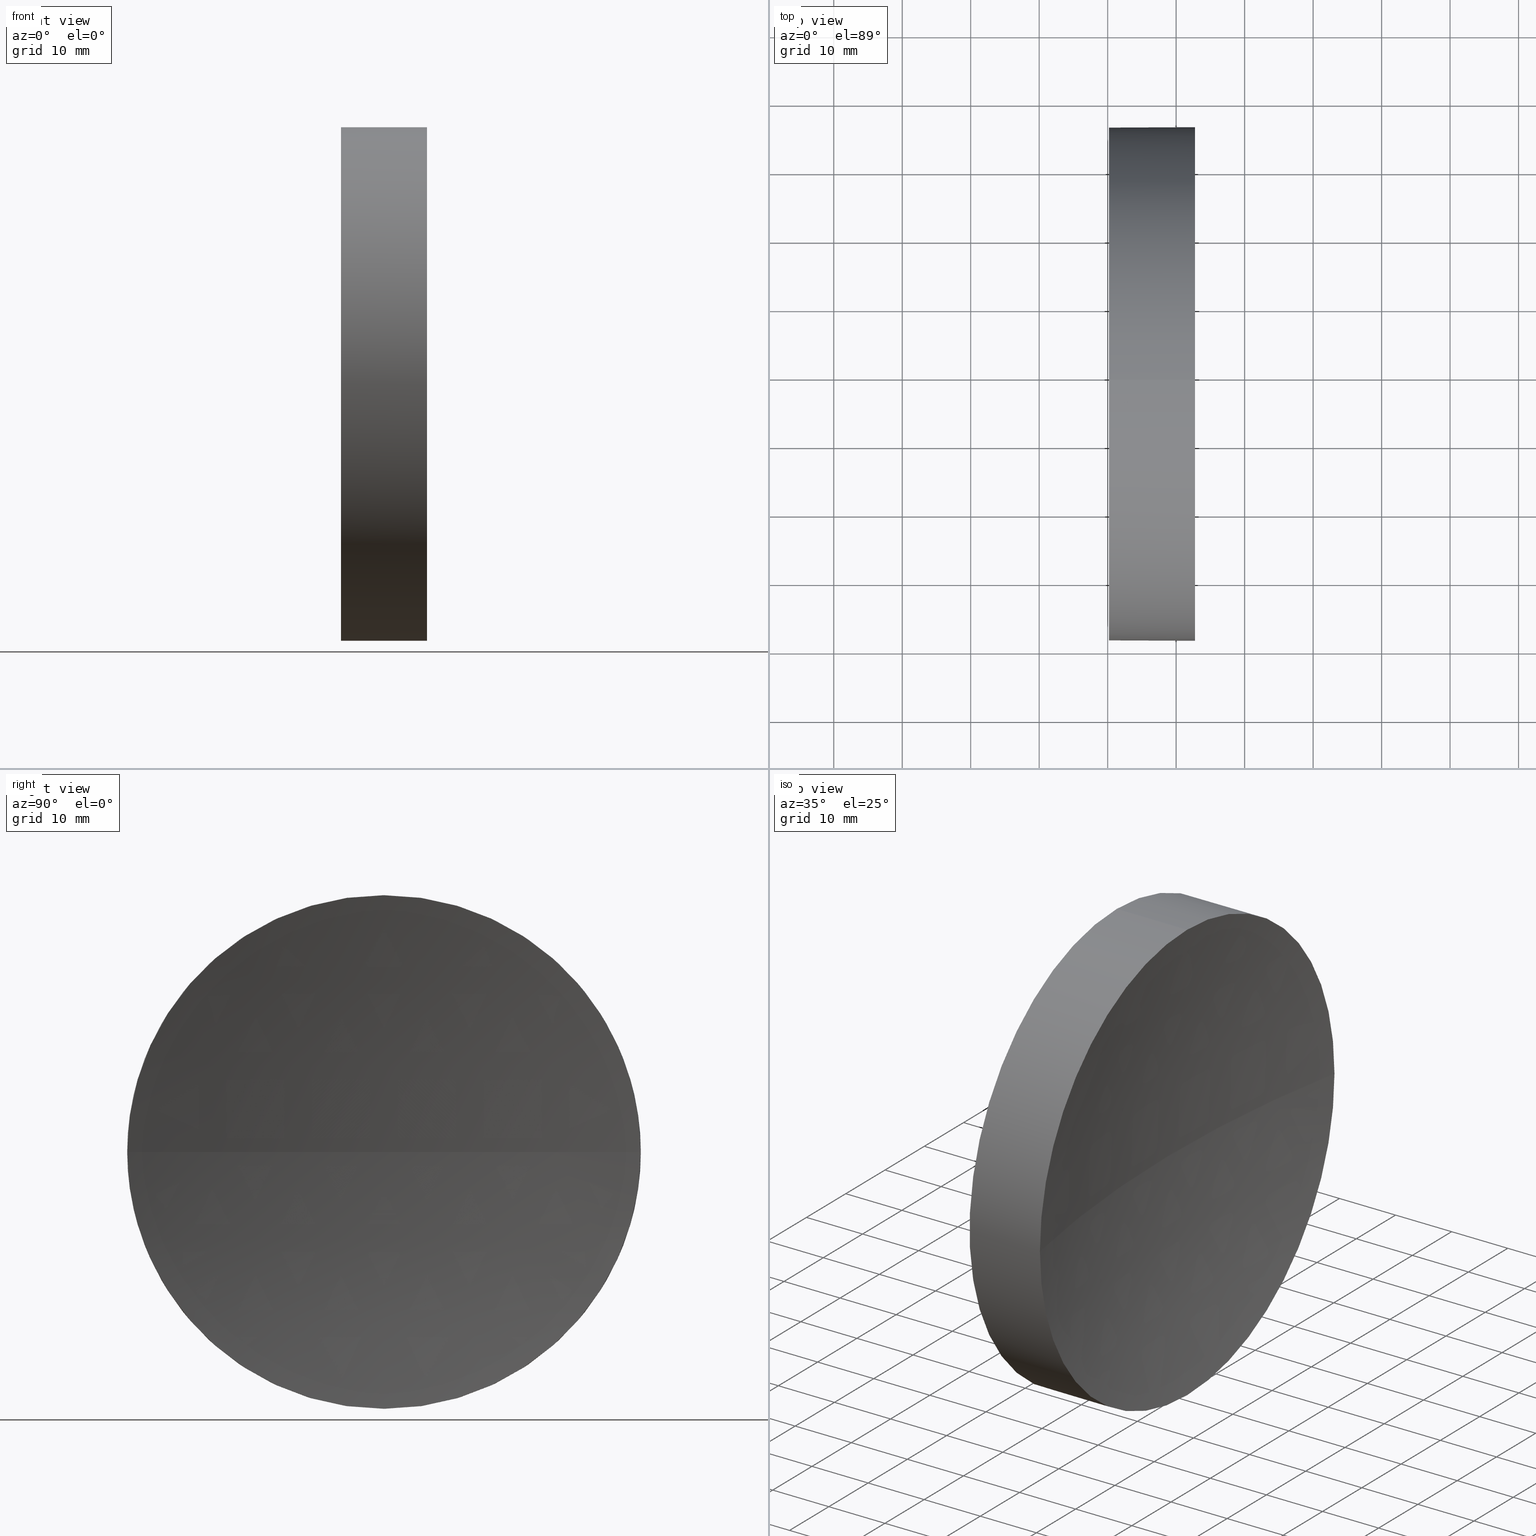
[diagram: canonical four-view strip — front | top / right | iso, engineering-drawing reading convention]
A machine part, canonical four-view strip (front | top / right | iso — engineering-drawing reading convention). The complete STEP part file that produces these views, byte-faithful:
ISO-10303-21;
HEADER;
FILE_DESCRIPTION (( 'STEP AP214' ),
    '1' );
FILE_NAME ('270059.STEP',
    '2019-07-23T07:25:18',
    ( '' ),
    ( '' ),
    'SwSTEP 2.0',
    'SolidWorks 2016',
    '' );
FILE_SCHEMA (( 'AUTOMOTIVE_DESIGN' ));
ENDSEC;

DATA;
#1 = COLOUR_RGB ( '',1.000000000000000000, 1.000000000000000000, 1.000000000000000000 ) ;
#2 =( LENGTH_UNIT ( ) NAMED_UNIT ( * ) SI_UNIT ( .MILLI., .METRE. ) );
#3 = APPLICATION_CONTEXT ( 'automotive_design' ) ;
#4 = DIRECTION ( 'NONE',  ( -1.000000000000000000, -0.0000000000000000000, -0.0000000000000000000 ) ) ;
#5 = CARTESIAN_POINT ( 'NONE',  ( 230.1996119052661200, 138.7560422467448700, 0.0000000000000000000 ) ) ;
#6 = DIRECTION ( 'NONE',  ( 0.0000000000000000000, 0.0000000000000000000, 1.000000000000000000 ) ) ;
#7 = ORIENTED_EDGE ( 'NONE', *, *, #78, .F. ) ;
#8 = VERTEX_POINT ( 'NONE', #102 ) ;
#9 = DIRECTION ( 'NONE',  ( 0.0000000000000000000, 1.224646799147353200E-016, -1.000000000000000000 ) ) ;
#10 = MECHANICAL_DESIGN_GEOMETRIC_PRESENTATION_REPRESENTATION (  '', ( #133 ), #31 ) ;
#11 = PRODUCT_DEFINITION_CONTEXT ( 'detailed design', #3, 'design' ) ;
#12 = CIRCLE ( 'NONE', #125, 37.50000000000000700 ) ;
#13 = VERTEX_POINT ( 'NONE', #62 ) ;
#14 = PRODUCT_CONTEXT ( 'NONE', #177, 'mechanical' ) ;
#15 = SURFACE_STYLE_FILL_AREA ( #60 ) ;
#16 = PRODUCT_RELATED_PRODUCT_CATEGORY ( 'part', '', ( #105 ) ) ;
#17 = FILL_AREA_STYLE_COLOUR ( '', #79 ) ;
#18 = DIRECTION ( 'NONE',  ( -1.000000000000000000, -0.0000000000000000000, -0.0000000000000000000 ) ) ;
#19 = ORIENTED_EDGE ( 'NONE', *, *, #69, .F. ) ;
#20 = CARTESIAN_POINT ( 'NONE',  ( 217.9702860043302100, 138.7560422467448700, 37.50000000000000700 ) ) ;
#21 = ORIENTED_EDGE ( 'NONE', *, *, #69, .T. ) ;
#22 = PRODUCT_DEFINITION ( 'δ֪', '', #149, #11 ) ;
#23 = VERTEX_POINT ( 'NONE', #99 ) ;
#24 =( GEOMETRIC_REPRESENTATION_CONTEXT ( 3 ) GLOBAL_UNCERTAINTY_ASSIGNED_CONTEXT ( ( #185 ) ) GLOBAL_UNIT_ASSIGNED_CONTEXT ( ( #37, #134, #160 ) ) REPRESENTATION_CONTEXT ( 'NONE', 'WORKASPACE' ) );
#25 = AXIS2_PLACEMENT_3D ( 'NONE', #115, #84, #42 ) ;
#26 = PRESENTATION_LAYER_ASSIGNMENT (  '', '', ( #32 ) ) ;
#27 = ORIENTED_EDGE ( 'NONE', *, *, #116, .T. ) ;
#28 = CARTESIAN_POINT ( 'NONE',  ( 242.7466913625733000, 138.7560422467448700, 0.0000000000000000000 ) ) ;
#29 =( NAMED_UNIT ( * ) PLANE_ANGLE_UNIT ( ) SI_UNIT ( $, .RADIAN. ) );
#30 = APPLICATION_PROTOCOL_DEFINITION ( 'draft international standard', 'automotive_design', 1998, #3 ) ;
#31 =( GEOMETRIC_REPRESENTATION_CONTEXT ( 3 ) GLOBAL_UNCERTAINTY_ASSIGNED_CONTEXT ( ( #64 ) ) GLOBAL_UNIT_ASSIGNED_CONTEXT ( ( #158, #29, #128 ) ) REPRESENTATION_CONTEXT ( 'NONE', 'WORKASPACE' ) );
#32 = STYLED_ITEM ( 'NONE', ( #183 ), #108 ) ;
#33 = ORIENTED_EDGE ( 'NONE', *, *, #116, .F. ) ;
#34 = DIRECTION ( 'NONE',  ( 0.0000000000000000000, 0.0000000000000000000, 1.000000000000000000 ) ) ;
#35 = CARTESIAN_POINT ( 'NONE',  ( 230.1996119052661200, 138.7560422467448700, 37.50000000000000700 ) ) ;
#36 = AXIS2_PLACEMENT_3D ( 'NONE', #144, #4, #34 ) ;
#37 =( LENGTH_UNIT ( ) NAMED_UNIT ( * ) SI_UNIT ( .MILLI., .METRE. ) );
#38 = ORIENTED_EDGE ( 'NONE', *, *, #142, .T. ) ;
#39 = ORIENTED_EDGE ( 'NONE', *, *, #135, .F. ) ;
#40 = SPHERICAL_SURFACE ( 'NONE', #182, 200.0000000000000000 ) ;
#41 = DIRECTION ( 'NONE',  ( -1.000000000000000000, -0.0000000000000000000, -0.0000000000000000000 ) ) ;
#42 = DIRECTION ( 'NONE',  ( 1.000000000000000000, 0.0000000000000000000, 0.0000000000000000000 ) ) ;
#43 = SURFACE_SIDE_STYLE ('',( #121 ) ) ;
#44 = CIRCLE ( 'NONE', #36, 37.50000000000000700 ) ;
#45 = EDGE_LOOP ( 'NONE', ( #7, #77, #33, #21 ) ) ;
#46 = CARTESIAN_POINT ( 'NONE',  ( 239.1996119313446300, 138.7560422467447600, 0.0000000000000000000 ) ) ;
#47 = EDGE_LOOP ( 'NONE', ( #109, #171, #38, #126, #140 ) ) ;
#48 = CYLINDRICAL_SURFACE ( 'NONE', #179, 37.50000000000000700 ) ;
#49 = SPHERICAL_SURFACE ( 'NONE', #131, 200.0000000000000000 ) ;
#50 = AXIS2_PLACEMENT_3D ( 'NONE', #147, #72, #178 ) ;
#51 = ORIENTED_EDGE ( 'NONE', *, *, #142, .F. ) ;
#52 = APPLICATION_PROTOCOL_DEFINITION ( 'draft international standard', 'automotive_design', 1998, #177 ) ;
#53 = DIRECTION ( 'NONE',  ( 1.000000000000000000, 0.0000000000000000000, 0.0000000000000000000 ) ) ;
#54 = FACE_OUTER_BOUND ( 'NONE', #122, .T. ) ;
#55 = ORIENTED_EDGE ( 'NONE', *, *, #57, .F. ) ;
#56 = DIRECTION ( 'NONE',  ( -1.000000000000000000, -0.0000000000000000000, -0.0000000000000000000 ) ) ;
#57 = EDGE_CURVE ( 'NONE', #13, #162, #165, .T. ) ;
#58 = ADVANCED_FACE ( 'NONE', ( #86 ), #49, .F. ) ;
#59 = AXIS2_PLACEMENT_3D ( 'NONE', #157, #56, #175 ) ;
#60 = FILL_AREA_STYLE ('',( #17 ) ) ;
#61 = PRESENTATION_LAYER_ASSIGNMENT (  '', '', ( #133 ) ) ;
#62 = CARTESIAN_POINT ( 'NONE',  ( 242.7466913625733000, 138.7560422467448700, 37.50000000000000700 ) ) ;
#63 = VERTEX_POINT ( 'NONE', #101 ) ;
#64 = UNCERTAINTY_MEASURE_WITH_UNIT (LENGTH_MEASURE( 1.000000000000000100E-005 ), #158, 'distance_accuracy_value', 'NONE');
#65 = AXIS2_PLACEMENT_3D ( 'NONE', #120, #66, #166 ) ;
#66 = DIRECTION ( 'NONE',  ( 0.0000000000000000000, 0.0000000000000000000, 1.000000000000000000 ) ) ;
#67 = CIRCLE ( 'NONE', #104, 37.50000000000000700 ) ;
#68 = VECTOR ( 'NONE', #112, 1000.000000000000000 ) ;
#69 = EDGE_CURVE ( 'NONE', #89, #74, #130, .T. ) ;
#70 = DIRECTION ( 'NONE',  ( -1.000000000000000000, -0.0000000000000000000, -0.0000000000000000000 ) ) ;
#71 = FILL_AREA_STYLE_COLOUR ( '', #1 ) ;
#72 = DIRECTION ( 'NONE',  ( -1.000000000000000000, -0.0000000000000000000, -0.0000000000000000000 ) ) ;
#73 = SURFACE_SIDE_STYLE ('',( #15 ) ) ;
#74 = VERTEX_POINT ( 'NONE', #46 ) ;
#75 = DIRECTION ( 'NONE',  ( 0.0000000000000000000, 0.0000000000000000000, -1.000000000000000000 ) ) ;
#76 = DIRECTION ( 'NONE',  ( 0.0000000000000000000, 1.000000000000000000, 0.0000000000000000000 ) ) ;
#77 = ORIENTED_EDGE ( 'NONE', *, *, #161, .F. ) ;
#78 = EDGE_CURVE ( 'NONE', #63, #74, #124, .T. ) ;
#79 = COLOUR_RGB ( '',1.000000000000000000, 1.000000000000000000, 1.000000000000000000 ) ;
#80 = AXIS2_PLACEMENT_3D ( 'NONE', #5, #53, #156 ) ;
#81 = DIRECTION ( 'NONE',  ( 0.0000000000000000000, 0.0000000000000000000, 1.000000000000000000 ) ) ;
#82 = ORIENTED_EDGE ( 'NONE', *, *, #95, .T. ) ;
#83 = SURFACE_STYLE_USAGE ( .BOTH. , #43 ) ;
#84 = DIRECTION ( 'NONE',  ( 0.0000000000000000000, 0.0000000000000000000, 1.000000000000000000 ) ) ;
#85 =( GEOMETRIC_REPRESENTATION_CONTEXT ( 3 ) GLOBAL_UNCERTAINTY_ASSIGNED_CONTEXT ( ( #163 ) ) GLOBAL_UNIT_ASSIGNED_CONTEXT ( ( #2, #113, #94 ) ) REPRESENTATION_CONTEXT ( 'NONE', 'WORKASPACE' ) );
#86 = FACE_OUTER_BOUND ( 'NONE', #150, .T. ) ;
#87 = CARTESIAN_POINT ( 'NONE',  ( 230.1996119052661200, 138.7560422467448700, 0.0000000000000000000 ) ) ;
#88 = ADVANCED_FACE ( 'NONE', ( #92 ), #40, .F. ) ;
#89 = VERTEX_POINT ( 'NONE', #181 ) ;
#90 = AXIS2_PLACEMENT_3D ( 'NONE', #91, #9, #106 ) ;
#91 = CARTESIAN_POINT ( 'NONE',  ( 439.1996119313446300, 138.7560422467447600, 0.0000000000000000000 ) ) ;
#92 = FACE_OUTER_BOUND ( 'NONE', #45, .T. ) ;
#93 = DIRECTION ( 'NONE',  ( 0.0000000000000000000, 0.0000000000000000000, 1.000000000000000000 ) ) ;
#94 =( NAMED_UNIT ( * ) SI_UNIT ( $, .STERADIAN. ) SOLID_ANGLE_UNIT ( ) );
#95 = EDGE_CURVE ( 'NONE', #162, #8, #123, .T. ) ;
#96 = CARTESIAN_POINT ( 'NONE',  ( 217.9702860043302100, 138.7560422467448700, -37.50000000000000700 ) ) ;
#97 = FACE_OUTER_BOUND ( 'NONE', #154, .T. ) ;
#98 = PLANE ( 'NONE',  #80 ) ;
#99 = CARTESIAN_POINT ( 'NONE',  ( 242.7466913625733000, 138.7560422467448700, -37.50000000000000700 ) ) ;
#100 = AXIS2_PLACEMENT_3D ( 'NONE', #110, #70, #145 ) ;
#101 = CARTESIAN_POINT ( 'NONE',  ( 242.7466913625733300, 101.2560422467446800, -4.592425496802582300E-015 ) ) ;
#102 = CARTESIAN_POINT ( 'NONE',  ( 230.1996119052661200, 138.7560422467448700, -37.50000000000000700 ) ) ;
#103 = ORIENTED_EDGE ( 'NONE', *, *, #78, .T. ) ;
#104 = AXIS2_PLACEMENT_3D ( 'NONE', #176, #174, #81 ) ;
#105 = PRODUCT ( '270059', '270059', '', ( #14 ) ) ;
#106 = DIRECTION ( 'NONE',  ( 0.0000000000000000000, 1.000000000000000000, 1.224646799147353200E-016 ) ) ;
#107 = ADVANCED_FACE ( 'NONE', ( #129 ), #164, .T. ) ;
#108 = MANIFOLD_SOLID_BREP ( '��ת1', #119 ) ;
#109 = ORIENTED_EDGE ( 'NONE', *, *, #173, .F. ) ;
#110 = CARTESIAN_POINT ( 'NONE',  ( 242.7466913625733000, 138.7560422467448700, 0.0000000000000000000 ) ) ;
#111 = FILL_AREA_STYLE ('',( #71 ) ) ;
#112 = DIRECTION ( 'NONE',  ( -1.000000000000000000, -0.0000000000000000000, -0.0000000000000000000 ) ) ;
#113 =( NAMED_UNIT ( * ) PLANE_ANGLE_UNIT ( ) SI_UNIT ( $, .RADIAN. ) );
#114 = ADVANCED_FACE ( 'NONE', ( #97 ), #98, .F. ) ;
#115 = CARTESIAN_POINT ( 'NONE',  ( 0.0000000000000000000, 0.0000000000000000000, 0.0000000000000000000 ) ) ;
#116 = EDGE_CURVE ( 'NONE', #89, #23, #155, .T. ) ;
#117 = SURFACE_STYLE_USAGE ( .BOTH. , #73 ) ;
#118 = SHAPE_DEFINITION_REPRESENTATION ( #141, #127 ) ;
#119 = CLOSED_SHELL ( 'NONE', ( #139, #58, #88, #107, #114 ) ) ;
#120 = CARTESIAN_POINT ( 'NONE',  ( 439.1996119313446300, 138.7560422467447600, 0.0000000000000000000 ) ) ;
#121 = SURFACE_STYLE_FILL_AREA ( #111 ) ;
#122 = EDGE_LOOP ( 'NONE', ( #27, #184, #186, #55, #143 ) ) ;
#123 = CIRCLE ( 'NONE', #170, 37.50000000000000700 ) ;
#124 = CIRCLE ( 'NONE', #90, 200.0000000000000000 ) ;
#125 = AXIS2_PLACEMENT_3D ( 'NONE', #28, #41, #6 ) ;
#126 = ORIENTED_EDGE ( 'NONE', *, *, #57, .T. ) ;
#127 = ADVANCED_BREP_SHAPE_REPRESENTATION ( '270059', ( #108, #25 ), #85 ) ;
#128 =( NAMED_UNIT ( * ) SI_UNIT ( $, .STERADIAN. ) SOLID_ANGLE_UNIT ( ) );
#129 = FACE_OUTER_BOUND ( 'NONE', #47, .T. ) ;
#130 = CIRCLE ( 'NONE', #65, 200.0000000000000000 ) ;
#131 = AXIS2_PLACEMENT_3D ( 'NONE', #148, #180, #151 ) ;
#132 = DIRECTION ( 'NONE',  ( -1.000000000000000000, -0.0000000000000000000, -0.0000000000000000000 ) ) ;
#133 = STYLED_ITEM ( 'NONE', ( #167 ), #127 ) ;
#134 =( NAMED_UNIT ( * ) PLANE_ANGLE_UNIT ( ) SI_UNIT ( $, .RADIAN. ) );
#135 = EDGE_CURVE ( 'NONE', #13, #89, #67, .T. ) ;
#136 = DIRECTION ( 'NONE',  ( -1.000000000000000000, -0.0000000000000000000, -0.0000000000000000000 ) ) ;
#137 = ORIENTED_EDGE ( 'NONE', *, *, #153, .T. ) ;
#138 = CARTESIAN_POINT ( 'NONE',  ( 439.1996119313446300, 138.7560422467447600, 0.0000000000000000000 ) ) ;
#139 = ADVANCED_FACE ( 'NONE', ( #54 ), #48, .T. ) ;
#140 = ORIENTED_EDGE ( 'NONE', *, *, #153, .F. ) ;
#141 = PRODUCT_DEFINITION_SHAPE ( 'NONE', 'NONE',  #22 ) ;
#142 = EDGE_CURVE ( 'NONE', #63, #13, #12, .T. ) ;
#143 = ORIENTED_EDGE ( 'NONE', *, *, #135, .T. ) ;
#144 = CARTESIAN_POINT ( 'NONE',  ( 242.7466913625733000, 138.7560422467448700, 0.0000000000000000000 ) ) ;
#145 = DIRECTION ( 'NONE',  ( 0.0000000000000000000, 0.0000000000000000000, 1.000000000000000000 ) ) ;
#146 = MECHANICAL_DESIGN_GEOMETRIC_PRESENTATION_REPRESENTATION (  '', ( #32 ), #24 ) ;
#147 = CARTESIAN_POINT ( 'NONE',  ( 217.9702860043302100, 138.7560422467448700, 0.0000000000000000000 ) ) ;
#148 = CARTESIAN_POINT ( 'NONE',  ( 439.1996119313446300, 138.7560422467447600, 0.0000000000000000000 ) ) ;
#149 = PRODUCT_DEFINITION_FORMATION_WITH_SPECIFIED_SOURCE ( '�κ�', '', #105, .NOT_KNOWN. ) ;
#150 = EDGE_LOOP ( 'NONE', ( #51, #103, #19, #39 ) ) ;
#151 = DIRECTION ( 'NONE',  ( 0.0000000000000000000, 1.000000000000000000, 0.0000000000000000000 ) ) ;
#152 = LINE ( 'NONE', #96, #68 ) ;
#153 = EDGE_CURVE ( 'NONE', #8, #162, #168, .T. ) ;
#154 = EDGE_LOOP ( 'NONE', ( #82, #137 ) ) ;
#155 = CIRCLE ( 'NONE', #100, 37.50000000000000700 ) ;
#156 = DIRECTION ( 'NONE',  ( 0.0000000000000000000, 0.0000000000000000000, -1.000000000000000000 ) ) ;
#157 = CARTESIAN_POINT ( 'NONE',  ( 230.1996119052661200, 138.7560422467448700, 0.0000000000000000000 ) ) ;
#158 =( LENGTH_UNIT ( ) NAMED_UNIT ( * ) SI_UNIT ( .MILLI., .METRE. ) );
#159 = DIRECTION ( 'NONE',  ( 0.0000000000000000000, 0.0000000000000000000, 1.000000000000000000 ) ) ;
#160 =( NAMED_UNIT ( * ) SI_UNIT ( $, .STERADIAN. ) SOLID_ANGLE_UNIT ( ) );
#161 = EDGE_CURVE ( 'NONE', #23, #63, #44, .T. ) ;
#162 = VERTEX_POINT ( 'NONE', #35 ) ;
#163 = UNCERTAINTY_MEASURE_WITH_UNIT (LENGTH_MEASURE( 1.000000000000000100E-005 ), #2, 'distance_accuracy_value', 'NONE');
#164 = CYLINDRICAL_SURFACE ( 'NONE', #50, 37.50000000000000700 ) ;
#165 = LINE ( 'NONE', #20, #169 ) ;
#166 = DIRECTION ( 'NONE',  ( 1.000000000000000000, 0.0000000000000000000, 0.0000000000000000000 ) ) ;
#167 = PRESENTATION_STYLE_ASSIGNMENT (( #83 ) ) ;
#168 = CIRCLE ( 'NONE', #59, 37.50000000000000700 ) ;
#169 = VECTOR ( 'NONE', #136, 1000.000000000000000 ) ;
#170 = AXIS2_PLACEMENT_3D ( 'NONE', #87, #18, #159 ) ;
#171 = ORIENTED_EDGE ( 'NONE', *, *, #161, .T. ) ;
#172 = CARTESIAN_POINT ( 'NONE',  ( 217.9702860043302100, 138.7560422467448700, 0.0000000000000000000 ) ) ;
#173 = EDGE_CURVE ( 'NONE', #23, #8, #152, .T. ) ;
#174 = DIRECTION ( 'NONE',  ( -1.000000000000000000, -0.0000000000000000000, -0.0000000000000000000 ) ) ;
#175 = DIRECTION ( 'NONE',  ( 0.0000000000000000000, 0.0000000000000000000, 1.000000000000000000 ) ) ;
#176 = CARTESIAN_POINT ( 'NONE',  ( 242.7466913625733000, 138.7560422467448700, 0.0000000000000000000 ) ) ;
#177 = APPLICATION_CONTEXT ( 'automotive_design' ) ;
#178 = DIRECTION ( 'NONE',  ( 0.0000000000000000000, 0.0000000000000000000, 1.000000000000000000 ) ) ;
#179 = AXIS2_PLACEMENT_3D ( 'NONE', #172, #132, #93 ) ;
#180 = DIRECTION ( 'NONE',  ( 0.0000000000000000000, 0.0000000000000000000, -1.000000000000000000 ) ) ;
#181 = CARTESIAN_POINT ( 'NONE',  ( 242.7466913625733300, 176.2560422467449500, 0.0000000000000000000 ) ) ;
#182 = AXIS2_PLACEMENT_3D ( 'NONE', #138, #75, #76 ) ;
#183 = PRESENTATION_STYLE_ASSIGNMENT (( #117 ) ) ;
#184 = ORIENTED_EDGE ( 'NONE', *, *, #173, .T. ) ;
#185 = UNCERTAINTY_MEASURE_WITH_UNIT (LENGTH_MEASURE( 1.000000000000000100E-005 ), #37, 'distance_accuracy_value', 'NONE');
#186 = ORIENTED_EDGE ( 'NONE', *, *, #95, .F. ) ;
ENDSEC;
END-ISO-10303-21;
